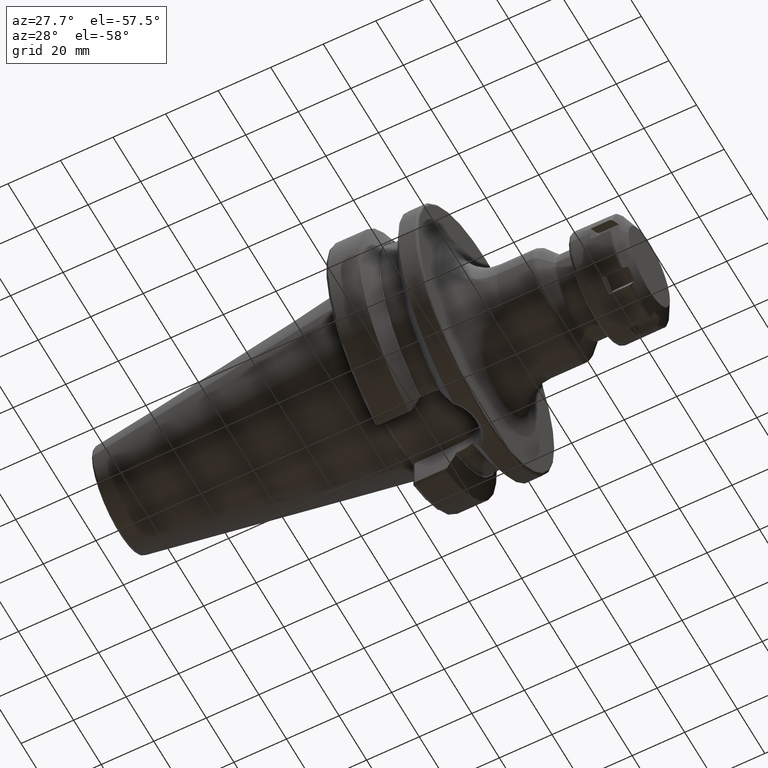
[diagram: clean part render]
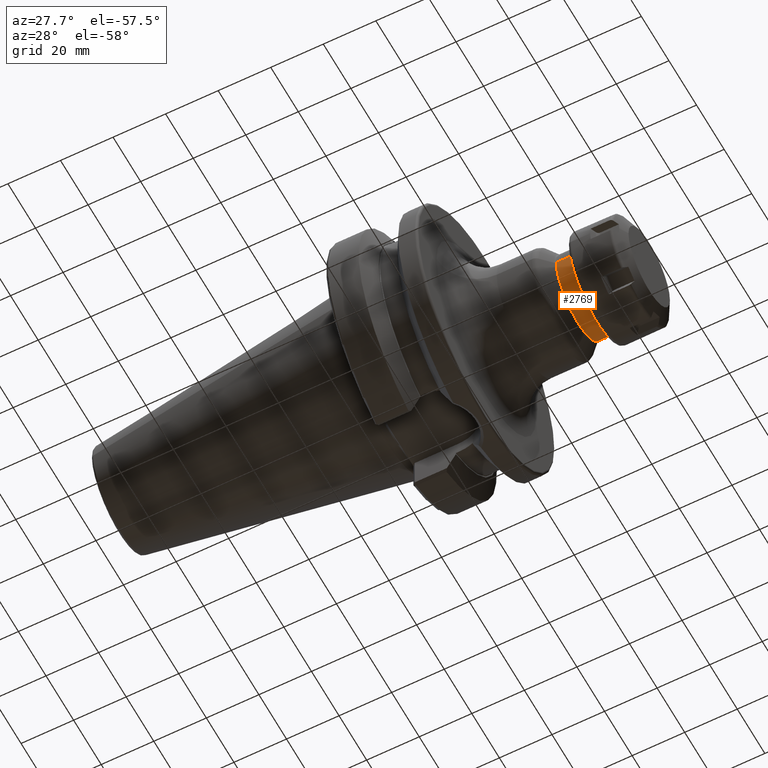
[diagram: same view with one face highlighted and labeled with its STEP entity id]
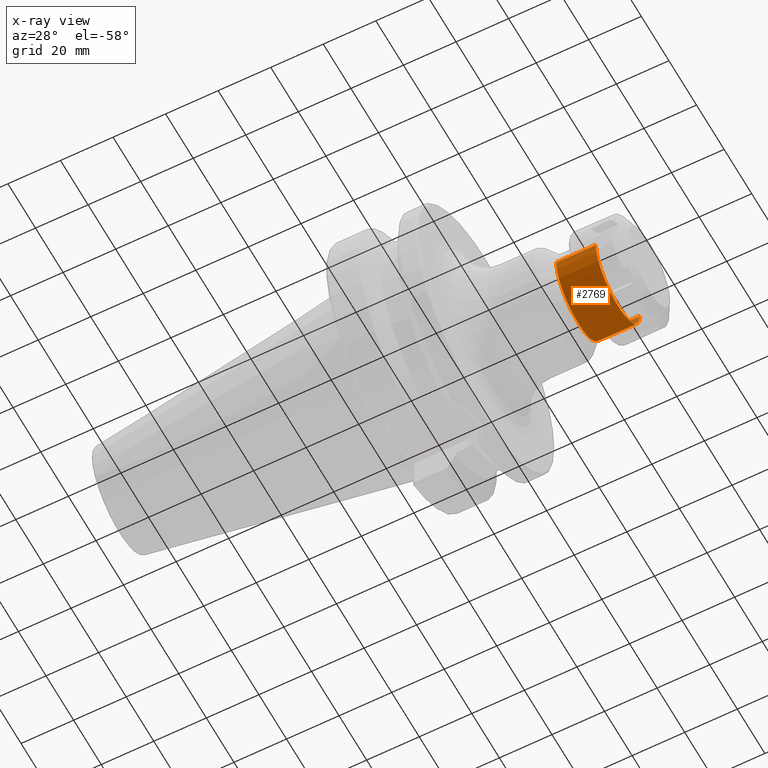
[diagram: x-ray of the same camera — body ghosted, the highlighted face saturated]
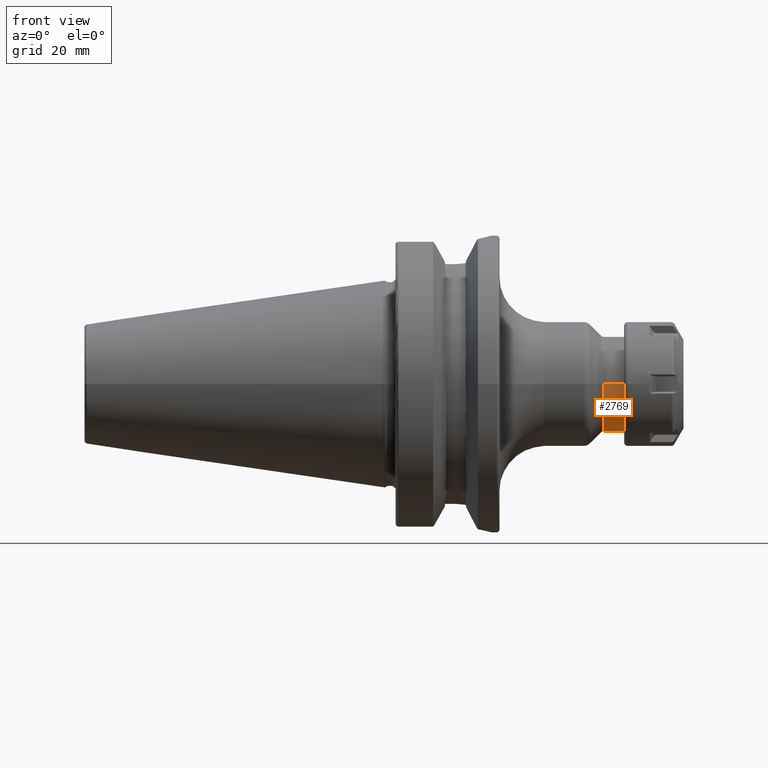
[diagram: same view with one face highlighted and labeled with its STEP entity id]
A machine part, auxiliary view. The second image highlights one B-rep face of the part: STEP entity #2769.
The next image is the same camera in x-ray: the body ghosted, the highlighted face saturated — about 0% of this face is hidden behind the body in this view.
A second angle (front view) of the same face is appended — the face is thin or edge-on in the first view.
In plain terms, the highlighted cylindrical surface (partial cylindrical patch) has radius 16 mm, axis along (1, 0, 0).
Its self-contained STEP definition (entity closure, byte-faithful):
#930=CARTESIAN_POINT('',(7.301421356237E1,0.E0,0.E0));
#931=DIRECTION('',(1.E0,0.E0,0.E0));
#932=DIRECTION('',(0.E0,-1.E0,0.E0));
#933=AXIS2_PLACEMENT_3D('',#930,#931,#932);
#935=DIRECTION('',(-1.E0,0.E0,1.355529620365E-13));
#936=VECTOR('',#935,1.508578643763E1);
#937=CARTESIAN_POINT('',(8.81E1,-1.6E1,0.E0));
#938=LINE('',#937,#936);
#939=CARTESIAN_POINT('',(8.81E1,0.E0,0.E0));
#940=DIRECTION('',(-1.E0,0.E0,0.E0));
#941=DIRECTION('',(0.E0,1.E0,0.E0));
#942=AXIS2_PLACEMENT_3D('',#939,#940,#941);
#944=DIRECTION('',(-1.E0,0.E0,-1.354727427989E-13));
#945=VECTOR('',#944,1.508578643763E1);
#946=CARTESIAN_POINT('',(8.81E1,1.6E1,0.E0));
#947=LINE('',#946,#945);
#1447=CARTESIAN_POINT('',(8.81E1,1.6E1,0.E0));
#1448=CARTESIAN_POINT('',(8.81E1,-1.6E1,0.E0));
#1449=VERTEX_POINT('',#1447);
#1450=VERTEX_POINT('',#1448);
#1475=CARTESIAN_POINT('',(7.301421356237E1,-1.6E1,0.E0));
#1476=CARTESIAN_POINT('',(7.301421356237E1,1.6E1,0.E0));
#1477=VERTEX_POINT('',#1475);
#1478=VERTEX_POINT('',#1476);
#2755=CARTESIAN_POINT('',(3.5495E1,0.E0,0.E0));
#2756=DIRECTION('',(1.E0,0.E0,0.E0));
#2757=DIRECTION('',(0.E0,-1.E0,0.E0));
#2758=AXIS2_PLACEMENT_3D('',#2755,#2756,#2757);
#2759=CYLINDRICAL_SURFACE('',#2758,1.6E1);
#2760=ORIENTED_EDGE('',*,*,#2749,.F.);
#2762=ORIENTED_EDGE('',*,*,#2761,.F.);
#2764=ORIENTED_EDGE('',*,*,#2763,.F.);
#2766=ORIENTED_EDGE('',*,*,#2765,.T.);
#2767=EDGE_LOOP('',(#2760,#2762,#2764,#2766));
#2768=FACE_OUTER_BOUND('',#2767,.F.);
#2769=ADVANCED_FACE('',(#2768),#2759,.T.);
#934=CIRCLE('',#933,1.6E1);
#943=CIRCLE('',#942,1.6E1);
#2749=EDGE_CURVE('',#1477,#1478,#934,.T.);
#2761=EDGE_CURVE('',#1450,#1477,#938,.T.);
#2763=EDGE_CURVE('',#1449,#1450,#943,.T.);
#2765=EDGE_CURVE('',#1449,#1478,#947,.T.);